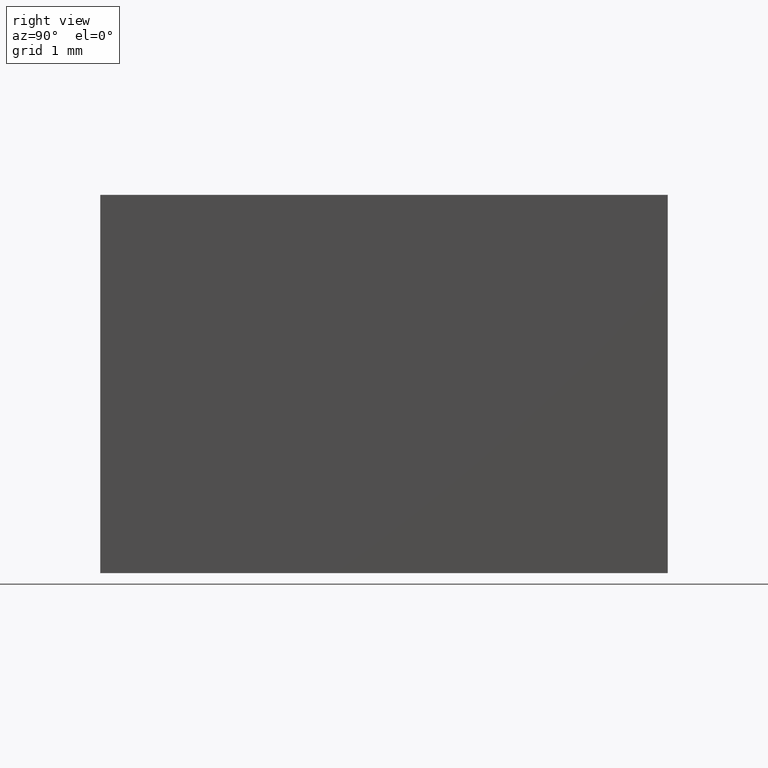
[diagram: clean part render]
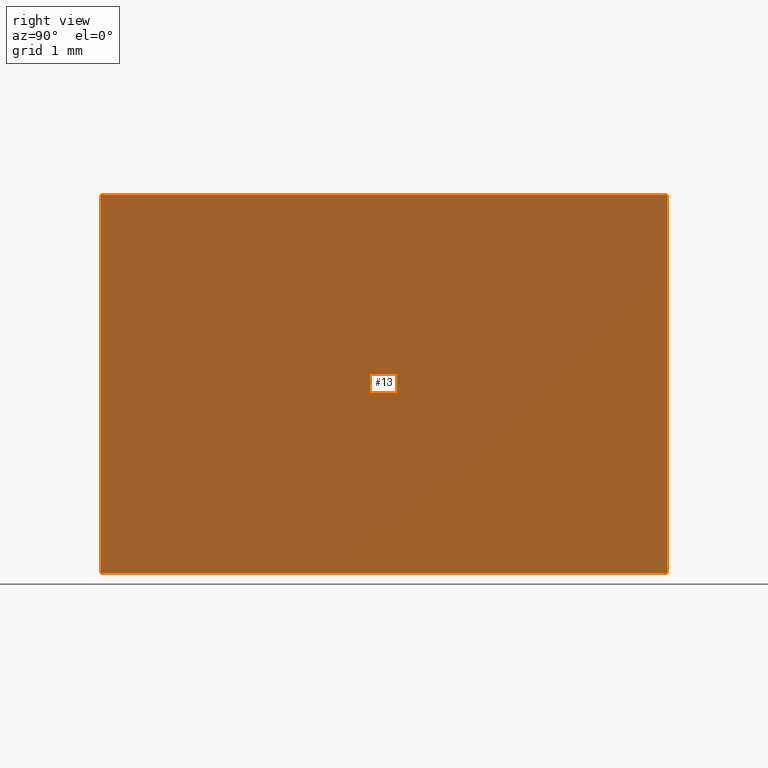
[diagram: same view with one face highlighted and labeled with its STEP entity id]
A machine part, right view. The second image highlights one B-rep face of the part: STEP entity #13.
In plain terms, the highlighted planar face has unit normal (-1, 0, 0).
Its self-contained STEP definition (entity closure, byte-faithful):
#1 = DIRECTION ( 'NONE',  ( -0.0000000000000000000, -1.000000000000000000, -0.0000000000000000000 ) ) ;
#4 = DIRECTION ( 'NONE',  ( -0.0000000000000000000, -0.0000000000000000000, -1.000000000000000000 ) ) ;
#5 = EDGE_CURVE ( 'NONE', #169, #12, #99, .T. ) ;
#8 = VECTOR ( 'NONE', #1, 1000.000000000000000 ) ;
#11 = CARTESIAN_POINT ( 'NONE',  ( 0.0000000000000000000, 0.0000000000000000000, 0.0000000000000000000 ) ) ;
#12 = VERTEX_POINT ( 'NONE', #79 ) ;
#13 = ADVANCED_FACE ( 'NONE', ( #80 ), #139, .F. ) ;
#20 = LINE ( 'NONE', #151, #8 ) ;
#24 = VECTOR ( 'NONE', #4, 1000.000000000000000 ) ;
#38 = ORIENTED_EDGE ( 'NONE', *, *, #46, .T. ) ;
#39 = DIRECTION ( 'NONE',  ( -0.0000000000000000000, -0.0000000000000000000, -1.000000000000000000 ) ) ;
#46 = EDGE_CURVE ( 'NONE', #169, #73, #20, .T. ) ;
#72 = ORIENTED_EDGE ( 'NONE', *, *, #5, .F. ) ;
#73 = VERTEX_POINT ( 'NONE', #198 ) ;
#79 = CARTESIAN_POINT ( 'NONE',  ( 0.0000000000000000000, 6.000000000000000000, 0.0000000000000000000 ) ) ;
#80 = FACE_OUTER_BOUND ( 'NONE', #131, .T. ) ;
#86 = EDGE_CURVE ( 'NONE', #12, #170, #201, .T. ) ;
#89 = CARTESIAN_POINT ( 'NONE',  ( 0.0000000000000000000, 6.000000000000000000, 0.0000000000000000000 ) ) ;
#99 = LINE ( 'NONE', #155, #24 ) ;
#107 = CARTESIAN_POINT ( 'NONE',  ( 0.0000000000000000000, 0.0000000000000000000, 0.0000000000000000000 ) ) ;
#120 = DIRECTION ( 'NONE',  ( -0.0000000000000000000, -1.000000000000000000, -0.0000000000000000000 ) ) ;
#127 = CARTESIAN_POINT ( 'NONE',  ( 0.0000000000000000000, 6.000000000000000000, 0.0000000000000000000 ) ) ;
#131 = EDGE_LOOP ( 'NONE', ( #147, #159, #72, #38 ) ) ;
#135 = DIRECTION ( 'NONE',  ( -1.000000000000000000, 0.0000000000000000000, 0.0000000000000000000 ) ) ;
#139 = PLANE ( 'NONE',  #200 ) ;
#143 = CARTESIAN_POINT ( 'NONE',  ( 0.0000000000000000000, 6.000000000000000000, 4.000000000000000000 ) ) ;
#146 = VECTOR ( 'NONE', #39, 1000.000000000000000 ) ;
#147 = ORIENTED_EDGE ( 'NONE', *, *, #167, .T. ) ;
#151 = CARTESIAN_POINT ( 'NONE',  ( 0.0000000000000000000, 6.000000000000000000, 4.000000000000000000 ) ) ;
#155 = CARTESIAN_POINT ( 'NONE',  ( 0.0000000000000000000, 6.000000000000000000, 0.0000000000000000000 ) ) ;
#156 = DIRECTION ( 'NONE',  ( 0.0000000000000000000, 0.0000000000000000000, 1.000000000000000000 ) ) ;
#159 = ORIENTED_EDGE ( 'NONE', *, *, #86, .F. ) ;
#164 = LINE ( 'NONE', #107, #146 ) ;
#167 = EDGE_CURVE ( 'NONE', #73, #170, #164, .T. ) ;
#169 = VERTEX_POINT ( 'NONE', #143 ) ;
#170 = VERTEX_POINT ( 'NONE', #11 ) ;
#182 = VECTOR ( 'NONE', #120, 1000.000000000000000 ) ;
#198 = CARTESIAN_POINT ( 'NONE',  ( 0.0000000000000000000, 0.0000000000000000000, 4.000000000000000000 ) ) ;
#200 = AXIS2_PLACEMENT_3D ( 'NONE', #89, #135, #156 ) ;
#201 = LINE ( 'NONE', #127, #182 ) ;